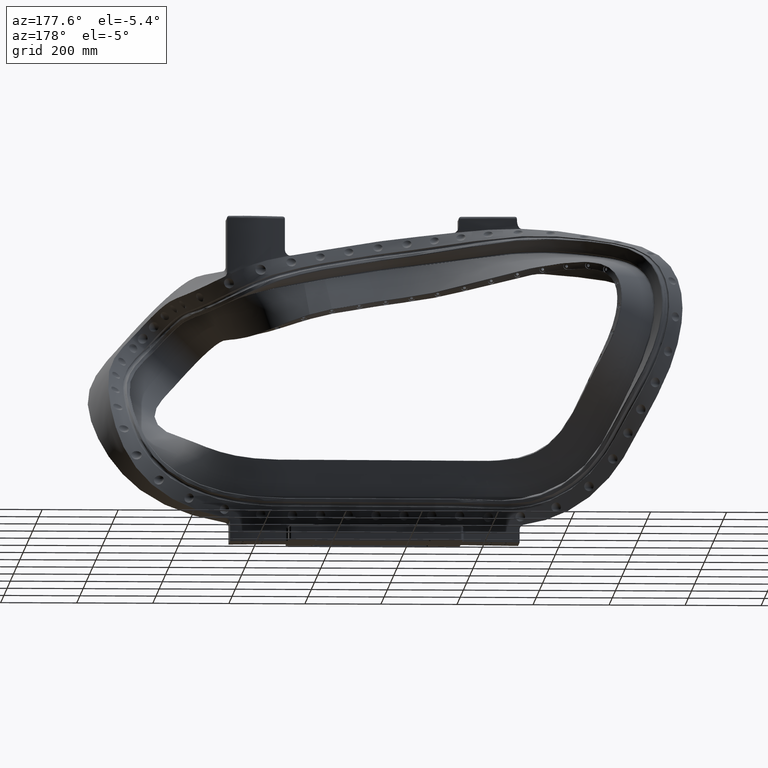
[diagram: clean part render]
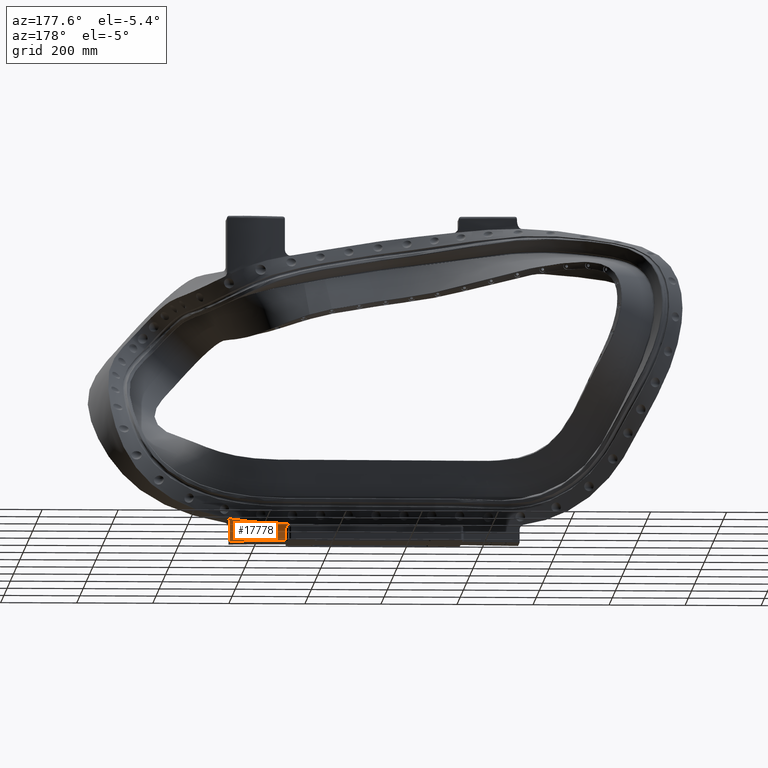
[diagram: same view with one face highlighted and labeled with its STEP entity id]
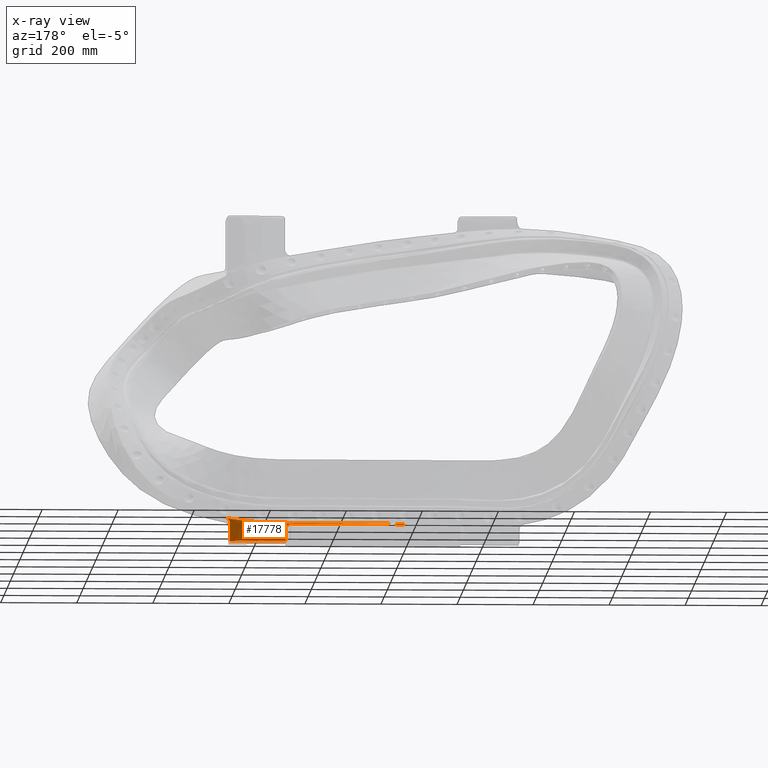
[diagram: x-ray of the same camera — body ghosted, the highlighted face saturated]
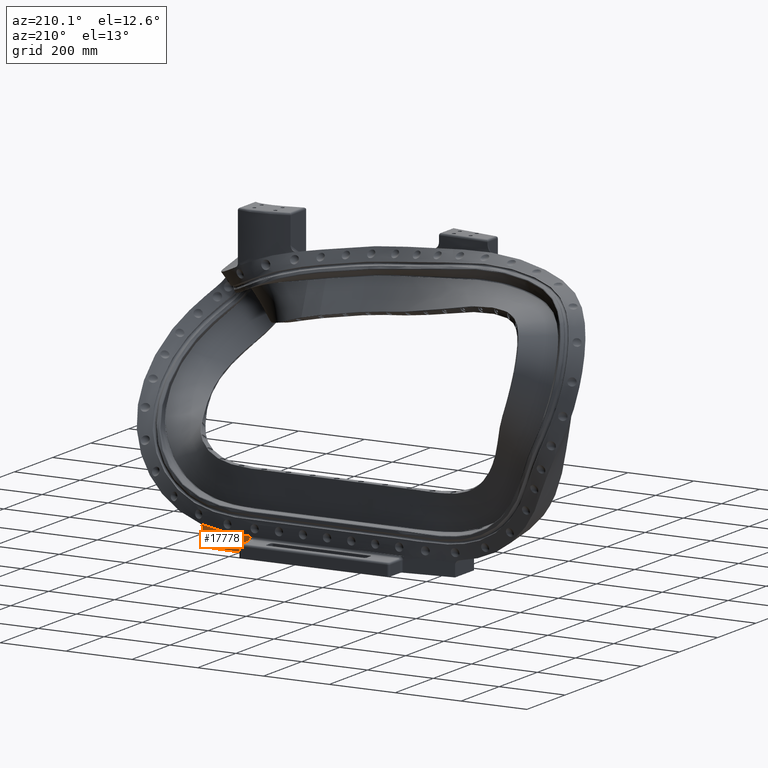
[diagram: same view with one face highlighted and labeled with its STEP entity id]
A machine part, auxiliary view. The second image highlights one B-rep face of the part: STEP entity #17778.
The next image is the same camera in x-ray: the body ghosted, the highlighted face saturated — about 0% of this face is hidden behind the body in this view.
A second angle (auxiliary view) of the same face is appended — the face is thin or edge-on in the first view.
In plain terms, the highlighted face is a SurfaceOfExtrusion surface.
Its self-contained STEP definition (entity closure, byte-faithful):
#24=CARTESIAN_POINT('',(1.839473828178E1,1.498515364288E0,-1.511705941948E1));
#2263=CARTESIAN_POINT('',(1.839473828178E1,1.498515364288E0,-1.511705941948E1));
#2264=CARTESIAN_POINT('',(1.833896895299E1,1.509655838708E0,-1.512899072724E1));
#2265=CARTESIAN_POINT('',(1.823145930681E1,1.530732792307E0,-1.517208466660E1));
#2266=CARTESIAN_POINT('',(1.810323191823E1,1.554818323497E0,-1.528530346941E1));
#2267=CARTESIAN_POINT('',(1.801923729794E1,1.570186765558E0,-1.543560250615E1));
#2268=CARTESIAN_POINT('',(1.8E1,1.573647856250E0,-1.554845522057E1));
#2269=CARTESIAN_POINT('',(1.8E1,1.573647856250E0,-1.560489556642E1));
#2279=DIRECTION('',(-9.692087132875E-11,-2.663557534536E-8,-1.E0));
#2280=VECTOR('',#2279,1.249999999998E0);
#2281=CARTESIAN_POINT('',(1.224909020027E1,1.978152341927E0,-1.625E1));
#2282=LINE('',#2281,#2280);
#2283=DIRECTION('',(0.E0,-6.124187012612E-10,1.E0));
#2284=VECTOR('',#2283,1.895104433578E0);
#2285=CARTESIAN_POINT('',(1.8E1,1.573647857411E0,-1.75E1));
#2286=LINE('',#2285,#2284);
#2287=CARTESIAN_POINT('',(5.309801042124E-3,1.962947486945E0,-1.575E1));
#2288=CARTESIAN_POINT('',(4.868869013505E-1,1.963469680061E0,-1.575E1));
#2289=CARTESIAN_POINT('',(1.450784860665E0,1.967662867830E0,-1.575E1));
#2290=CARTESIAN_POINT('',(2.896858909553E0,1.970906484128E0,-1.575E1));
#2291=CARTESIAN_POINT('',(4.341745835713E0,1.969995813327E0,-1.575E1));
#2292=CARTESIAN_POINT('',(5.782872873528E0,1.968827916582E0,-1.575E1));
#2293=CARTESIAN_POINT('',(7.216766569264E0,1.970562779247E0,-1.575E1));
#2294=CARTESIAN_POINT('',(8.647195736957E0,1.975170550080E0,-1.575E1));
#2295=CARTESIAN_POINT('',(1.009237660432E1,1.978787086432E0,-1.575E1));
#2296=CARTESIAN_POINT('',(1.112721990630E1,1.979764511593E0,-1.575E1));
#2297=CARTESIAN_POINT('',(1.168513183877E1,1.979334124553E0,-1.575E1));
#2298=CARTESIAN_POINT('',(1.174972583557E1,1.979263287107E0,-1.575E1));
#2300=CARTESIAN_POINT('',(1.224909020027E1,1.978152341927E0,-1.625E1));
#2301=CARTESIAN_POINT('',(1.224908974384E1,1.978152651720E0,-1.622502420327E1));
#2302=CARTESIAN_POINT('',(1.224546114695E1,1.978165441997E0,-1.617386206287E1));
#2303=CARTESIAN_POINT('',(1.222597376447E1,1.978235453653E0,-1.609135787696E1));
#2304=CARTESIAN_POINT('',(1.219062204799E1,1.978355652094E0,-1.600940986262E1));
#2305=CARTESIAN_POINT('',(1.213949330835E1,1.978515224388E0,-1.593283993080E1));
#2306=CARTESIAN_POINT('',(1.207438547335E1,1.978695097901E0,-1.586624842048E1));
#2307=CARTESIAN_POINT('',(1.199796145269E1,1.978875241619E0,-1.581284619325E1));
#2308=CARTESIAN_POINT('',(1.191464199028E1,1.979037114690E0,-1.577517138388E1));
#2309=CARTESIAN_POINT('',(1.182937031042E1,1.979169341368E0,-1.575401348081E1));
#2310=CARTESIAN_POINT('',(1.177596592587E1,1.979234895861E0,-1.575000058236E1));
#2311=CARTESIAN_POINT('',(1.174972583557E1,1.979263287107E0,-1.575E1));
#2346=DIRECTION('',(1.590071076384E-3,1.643207311770E-5,9.999987357012E-1));
#2347=VECTOR('',#2346,4.476278462813E-2);
#2348=CARTESIAN_POINT('',(5.309801042124E-3,1.962947486945E0,-1.575E1));
#2349=LINE('',#2348,#2347);
#7294=CARTESIAN_POINT('',(1.8E1,1.573647857411E0,-1.75E1));
#7295=CARTESIAN_POINT('',(1.758986111454E1,1.647777544079E0,-1.75E1));
#7296=CARTESIAN_POINT('',(1.655270009245E1,1.805029458253E0,-1.75E1));
#7297=CARTESIAN_POINT('',(1.492958491415E1,1.935558353841E0,-1.75E1));
#7298=CARTESIAN_POINT('',(1.342222716420E1,1.971225090541E0,-1.75E1));
#7299=CARTESIAN_POINT('',(1.254631802311E1,1.977070630157E0,-1.75E1));
#7300=CARTESIAN_POINT('',(1.224909020015E1,1.978152308632E0,-1.75E1));
#7663=CARTESIAN_POINT('',(1.8E1,1.573647856250E0,-1.560489556642E1));
#11984=CARTESIAN_POINT('',(5.380977051259E-3,1.962948222491E0,
-1.570523727197E1));
#11985=CARTESIAN_POINT('',(4.860566121835E-1,1.963469747356E0,
-1.570447017285E1));
#11986=CARTESIAN_POINT('',(1.391172334503E0,1.967403779094E0,
-1.570199822483E1));
#11987=CARTESIAN_POINT('',(2.297749859681E0,1.969554708113E0,
-1.569982655664E1));
#11988=CARTESIAN_POINT('',(2.721747247993E0,1.970042202454E0,
-1.569887011499E1));
#11990=CARTESIAN_POINT('',(2.721747247993E0,1.970042202454E0,
-1.569887011499E1));
#11991=CARTESIAN_POINT('',(2.780154464103E0,1.970109356612E0,
-1.569873836160E1));
#11992=CARTESIAN_POINT('',(3.321322525549E0,1.970640012120E0,
-1.569734542822E1));
#11993=CARTESIAN_POINT('',(4.343484290925E0,1.969993508025E0,
-1.569556530206E1));
#11994=CARTESIAN_POINT('',(5.787034847902E0,1.968826845340E0,
-1.569236805893E1));
#11995=CARTESIAN_POINT('',(7.221768281666E0,1.970575866516E0,
-1.568941107134E1));
#11996=CARTESIAN_POINT('',(8.281728656220E0,1.973992202516E0,
-1.568962690219E1));
#11997=CARTESIAN_POINT('',(8.866833556348E0,1.975619466178E0,
-1.569163861220E1));
#11998=CARTESIAN_POINT('',(8.977801182788E0,1.975916939121E0,
-1.569206491032E1));
#12000=CARTESIAN_POINT('',(8.977801182788E0,1.975916939121E0,
-1.569206491032E1));
#12001=CARTESIAN_POINT('',(9.341598177515E0,1.976892176368E0,
-1.569346248891E1));
#12002=CARTESIAN_POINT('',(1.018322964400E1,1.978856008571E0,
-1.569800026545E1));
#12003=CARTESIAN_POINT('',(1.153799732331E1,1.980143975224E0,
-1.570669470445E1));
#12004=CARTESIAN_POINT('',(1.311396953977E1,1.977203864150E0,
-1.569500037197E1));
#12005=CARTESIAN_POINT('',(1.484924701624E1,1.939391615422E0,
-1.562184248955E1));
#12006=CARTESIAN_POINT('',(1.651656401808E1,1.810054174199E0,
-1.545574450361E1));
#12007=CARTESIAN_POINT('',(1.758637384879E1,1.648249804807E0,
-1.527825899951E1));
#12008=CARTESIAN_POINT('',(1.799998907782E1,1.573562239381E0,
-1.519763492876E1));
#12010=CARTESIAN_POINT('',(1.799998907782E1,1.573562239381E0,
-1.519763492876E1));
#12011=CARTESIAN_POINT('',(1.804478878136E1,1.565465011578E0,
-1.518873998400E1));
#12012=CARTESIAN_POINT('',(1.813467500605E1,1.549047892241E0,
-1.517563349279E1));
#12013=CARTESIAN_POINT('',(1.826540852725E1,1.524145422154E0,
-1.514669341882E1));
#12014=CARTESIAN_POINT('',(1.835208637913E1,1.507035503238E0,
-1.512649293875E1));
#12015=CARTESIAN_POINT('',(1.839473828178E1,1.498515364288E0,
-1.511705941948E1));
#12448=CARTESIAN_POINT('',(1.8E1,1.573647857411E0,-1.75E1));
#12450=VERTEX_POINT('',#12448);
#12453=VERTEX_POINT('',#11984);
#12454=VERTEX_POINT('',#11988);
#12459=VERTEX_POINT('',#11998);
#12513=VERTEX_POINT('',#24);
#12515=VERTEX_POINT('',#7663);
#12518=VERTEX_POINT('',#12010);
#12592=CARTESIAN_POINT('',(1.224909020027E1,1.978152341927E0,-1.625E1));
#12593=CARTESIAN_POINT('',(1.224909020015E1,1.978152308632E0,-1.75E1));
#12594=VERTEX_POINT('',#12592);
#12595=VERTEX_POINT('',#12593);
#12598=VERTEX_POINT('',#2287);
#12599=VERTEX_POINT('',#2298);
#17734=CARTESIAN_POINT('',(-3.630815452750E-1,1.962889839835E0,-1.75E1));
#17735=CARTESIAN_POINT('',(-2.402367077865E-1,1.962784026527E0,-1.75E1));
#17736=CARTESIAN_POINT('',(3.641383356600E-1,1.962936488166E0,-1.75E1));
#17737=CARTESIAN_POINT('',(1.450832312096E0,1.967662668381E0,-1.75E1));
#17738=CARTESIAN_POINT('',(2.896858909463E0,1.970906565668E0,-1.75E1));
#17739=CARTESIAN_POINT('',(4.341745835739E0,1.969995793281E0,-1.75E1));
#17740=CARTESIAN_POINT('',(5.782872873510E0,1.968827915570E0,-1.75E1));
#17741=CARTESIAN_POINT('',(7.216766569309E0,1.970562803062E0,-1.75E1));
#17742=CARTESIAN_POINT('',(8.647195736796E0,1.975170456462E0,-1.75E1));
#17743=CARTESIAN_POINT('',(1.009237660494E1,1.978787444108E0,-1.75E1));
#17744=CARTESIAN_POINT('',(1.159090585470E1,1.980201042057E0,-1.75E1));
#17745=CARTESIAN_POINT('',(1.319119508641E1,1.976691716024E0,-1.75E1));
#17746=CARTESIAN_POINT('',(1.492958491415E1,1.935558353841E0,-1.75E1));
#17747=CARTESIAN_POINT('',(1.655270009245E1,1.805029458253E0,-1.75E1));
#17748=CARTESIAN_POINT('',(1.784439213449E1,1.609186149637E0,-1.75E1));
#17749=CARTESIAN_POINT('',(1.850564627221E1,1.477678819396E0,-1.75E1));
#17750=CARTESIAN_POINT('',(1.875708301889E1,1.423031301481E0,-1.75E1));
#17752=DIRECTION('',(0.E0,0.E0,1.E0));
#17753=VECTOR('',#17752,1.E0);
#17754=SURFACE_OF_LINEAR_EXTRUSION('',#17751,#17753);
#17756=ORIENTED_EDGE('',*,*,#17755,.T.);
#17758=ORIENTED_EDGE('',*,*,#17757,.F.);
#17760=ORIENTED_EDGE('',*,*,#17759,.T.);
#17761=ORIENTED_EDGE('',*,*,#17725,.F.);
#17763=ORIENTED_EDGE('',*,*,#17762,.F.);
#17765=ORIENTED_EDGE('',*,*,#17764,.F.);
#17767=ORIENTED_EDGE('',*,*,#17766,.F.);
#17769=ORIENTED_EDGE('',*,*,#17768,.F.);
#17771=ORIENTED_EDGE('',*,*,#17770,.F.);
#17773=ORIENTED_EDGE('',*,*,#17772,.T.);
#17775=ORIENTED_EDGE('',*,*,#17774,.F.);
#17776=EDGE_LOOP('',(#17756,#17758,#17760,#17761,#17763,#17765,#17767,#17769,
#17771,#17773,#17775));
#17777=FACE_OUTER_BOUND('',#17776,.F.);
#17778=ADVANCED_FACE('',(#17777),#17754,.F.);
#2270=B_SPLINE_CURVE_WITH_KNOTS('',3,(#2263,#2264,#2265,#2266,#2267,#2268,
#2269),.UNSPECIFIED.,.F.,.F.,(4,1,1,1,4),(0.E0,2.5E-1,5.E-1,7.5E-1,1.E0),
.UNSPECIFIED.);
#2299=B_SPLINE_CURVE_WITH_KNOTS('',3,(#2287,#2288,#2289,#2290,#2291,#2292,#2293,
#2294,#2295,#2296,#2297,#2298),.UNSPECIFIED.,.F.,.F.,(4,1,1,1,1,1,1,1,1,4),
(0.E0,1.230141728785E-1,2.462200462255E-1,3.693858774345E-1,4.920960613844E-1,
6.143417926364E-1,7.356597322905E-1,8.574868587197E-1,9.835000851909E-1,1.E0),
.UNSPECIFIED.);
#2312=B_SPLINE_CURVE_WITH_KNOTS('',3,(#2300,#2301,#2302,#2303,#2304,#2305,#2306,
#2307,#2308,#2309,#2310,#2311),.UNSPECIFIED.,.F.,.F.,(4,1,1,1,1,1,1,1,1,4),
(0.E0,1.111111111111E-1,2.222222222222E-1,3.333333333333E-1,4.444444444444E-1,
5.555555555556E-1,6.666666666667E-1,7.777777777778E-1,8.888888888889E-1,1.E0),
.UNSPECIFIED.);
#7301=B_SPLINE_CURVE_WITH_KNOTS('',3,(#7294,#7295,#7296,#7297,#7298,#7299,
#7300),.UNSPECIFIED.,.F.,.F.,(4,1,1,1,4),(0.E0,2.165331981507E-1,
5.447626389855E-1,8.455228075304E-1,1.E0),.UNSPECIFIED.);
#11989=B_SPLINE_CURVE_WITH_KNOTS('',3,(#11984,#11985,#11986,#11987,#11988),
.UNSPECIFIED.,.F.,.F.,(4,1,4),(0.E0,5.322883149887E-1,1.E0),.UNSPECIFIED.);
#11999=B_SPLINE_CURVE_WITH_KNOTS('',3,(#11990,#11991,#11992,#11993,#11994,
#11995,#11996,#11997,#11998),.UNSPECIFIED.,.F.,.F.,(4,1,1,1,1,1,4),(0.E0,
2.780190578148E-2,2.574758051188E-1,4.869059710576E-1,7.167686963190E-1,
9.463576887195E-1,1.E0),.UNSPECIFIED.);
#12009=B_SPLINE_CURVE_WITH_KNOTS('',3,(#12000,#12001,#12002,#12003,#12004,
#12005,#12006,#12007,#12008),.UNSPECIFIED.,.F.,.F.,(4,1,1,1,1,1,4),(0.E0,
1.419065455557E-1,3.272168184091E-1,5.124780161310E-1,6.976428237133E-1,
8.830309950522E-1,1.E0),.UNSPECIFIED.);
#12016=B_SPLINE_CURVE_WITH_KNOTS('',3,(#12010,#12011,#12012,#12013,#12014,
#12015),.UNSPECIFIED.,.F.,.F.,(4,1,1,4),(0.E0,3.333333333333E-1,
6.666666666667E-1,1.E0),.UNSPECIFIED.);
#17725=EDGE_CURVE('',#12513,#12515,#2270,.T.);
#17751=B_SPLINE_CURVE_WITH_KNOTS('',3,(#17734,#17735,#17736,#17737,#17738,
#17739,#17740,#17741,#17742,#17743,#17744,#17745,#17746,#17747,#17748,#17749,
#17750),.UNSPECIFIED.,.F.,.F.,(4,1,1,1,1,1,1,1,1,1,1,1,1,1,4),(0.E0,
1.923831331429E-2,9.464935486077E-2,1.701853567954E-1,2.456968093889E-1,
3.209289102655E-1,3.958762609194E-1,4.702547939833E-1,5.449455031814E-1,
6.222026587044E-1,7.049350429757E-1,7.955626409711E-1,8.944675124444E-1,
9.597151272785E-1,1.E0),.UNSPECIFIED.);
#17755=EDGE_CURVE('',#12594,#12595,#2282,.T.);
#17757=EDGE_CURVE('',#12450,#12595,#7301,.T.);
#17759=EDGE_CURVE('',#12450,#12515,#2286,.T.);
#17762=EDGE_CURVE('',#12518,#12513,#12016,.T.);
#17764=EDGE_CURVE('',#12459,#12518,#12009,.T.);
#17766=EDGE_CURVE('',#12454,#12459,#11999,.T.);
#17768=EDGE_CURVE('',#12453,#12454,#11989,.T.);
#17770=EDGE_CURVE('',#12598,#12453,#2349,.T.);
#17772=EDGE_CURVE('',#12598,#12599,#2299,.T.);
#17774=EDGE_CURVE('',#12594,#12599,#2312,.T.);